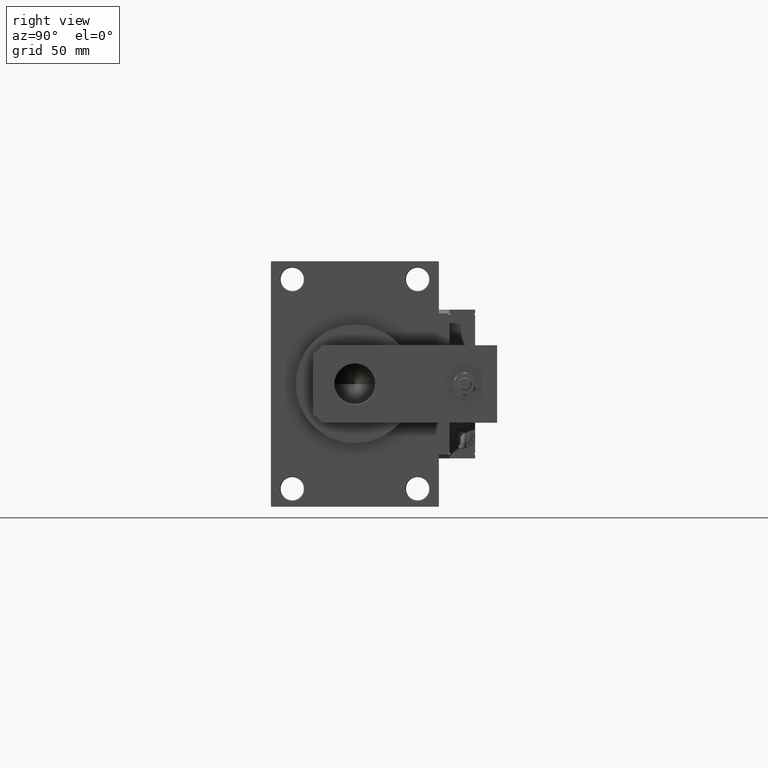
[diagram: clean part render]
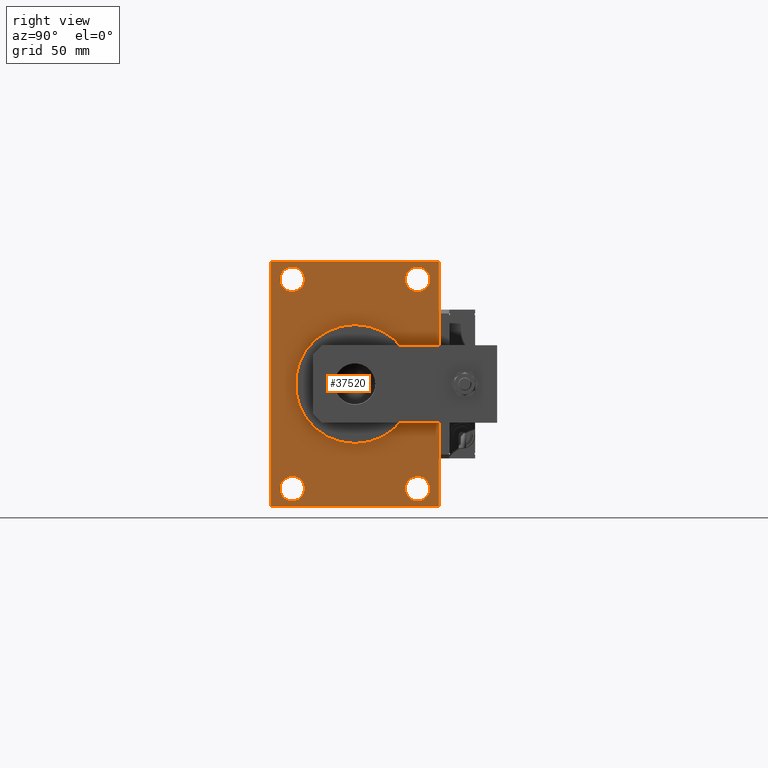
[diagram: same view with one face highlighted and labeled with its STEP entity id]
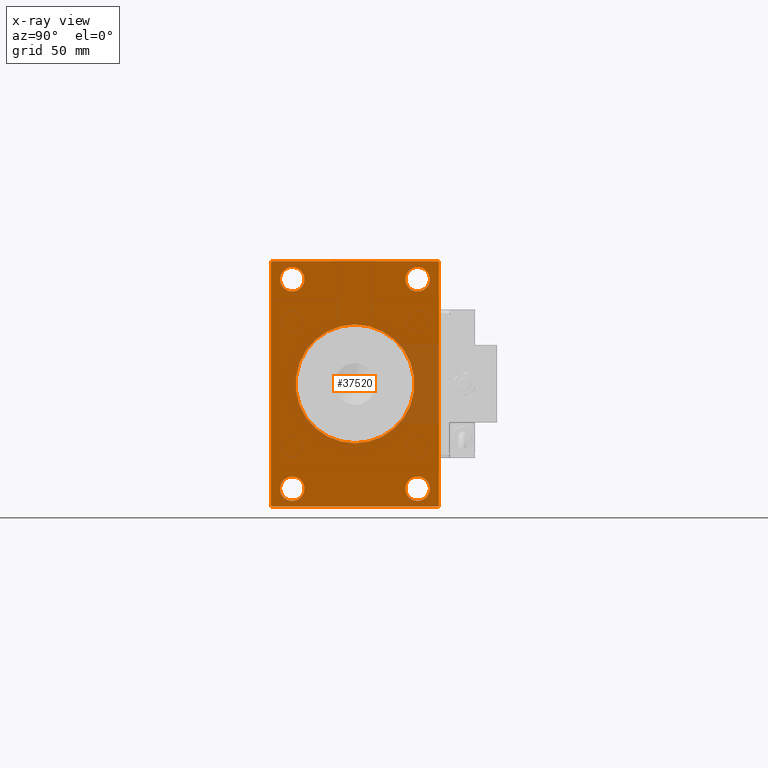
[diagram: x-ray of the same camera — body ghosted, the highlighted face saturated]
A machine part, right view. The second image highlights one B-rep face of the part: STEP entity #37520.
The next image is the same camera in x-ray: the body ghosted, the highlighted face saturated — about 8% of this face is hidden behind the body in this view.
In plain terms, the highlighted planar face has unit normal (-1, 0, 0).
Its self-contained STEP definition (entity closure, byte-faithful):
#40 = EDGE_CURVE ( 'NONE', #17274, #39453, #19210, .T. ) ;
#158 = VERTEX_POINT ( 'NONE', #14507 ) ;
#401 = EDGE_CURVE ( 'NONE', #36453, #158, #29932, .T. ) ;
#502 = CARTESIAN_POINT ( 'NONE',  ( 395.9999999999999432, 64.50000000000000000, 95.00000000000000000 ) ) ;
#1272 = DIRECTION ( 'NONE',  ( -1.000000000000000000, -0.000000000000000000, -0.000000000000000000 ) ) ;
#2403 = DIRECTION ( 'NONE',  ( -0.000000000000000000, -0.7071067811865474617, -0.7071067811865474617 ) ) ;
#3049 = DIRECTION ( 'NONE',  ( -1.000000000000000000, -0.000000000000000000, -0.000000000000000000 ) ) ;
#3743 = VERTEX_POINT ( 'NONE', #39944 ) ;
#4220 = DIRECTION ( 'NONE',  ( -1.000000000000000000, -0.000000000000000000, -0.000000000000000000 ) ) ;
#4673 = VERTEX_POINT ( 'NONE', #49192 ) ;
#4752 = DIRECTION ( 'NONE',  ( -1.000000000000000000, -0.000000000000000000, -0.000000000000000000 ) ) ;
#6580 = CARTESIAN_POINT ( 'NONE',  ( 395.9999999999999432, -48.50000000000000000, -90.50000000000007105 ) ) ;
#6640 = VERTEX_POINT ( 'NONE', #9848 ) ;
#6913 = VERTEX_POINT ( 'NONE', #502 ) ;
#7375 = VECTOR ( 'NONE', #21307, 1000.000000000000114 ) ;
#7833 = CARTESIAN_POINT ( 'NONE',  ( 395.9999999999999432, -48.50000000000000000, 81.00000000000000000 ) ) ;
#8194 = ORIENTED_EDGE ( 'NONE', *, *, #401, .T. ) ;
#8649 = DIRECTION ( 'NONE',  ( -1.000000000000000000, -0.000000000000000000, -0.000000000000000000 ) ) ;
#9210 = DIRECTION ( 'NONE',  ( 0.000000000000000000, 0.000000000000000000, 1.000000000000000000 ) ) ;
#9297 = EDGE_LOOP ( 'NONE', ( #37925, #52369 ) ) ;
#9630 = DIRECTION ( 'NONE',  ( -0.000000000000000000, 0.000000000000000000, 1.000000000000000000 ) ) ;
#9848 = CARTESIAN_POINT ( 'NONE',  ( 395.9999999999999432, 48.50000000000000000, 90.50000000000007105 ) ) ;
#10022 = VECTOR ( 'NONE', #13203, 1000.000000000000000 ) ;
#10342 = CIRCLE ( 'NONE', #13935, 9.500000000000063949 ) ;
#10599 = VERTEX_POINT ( 'NONE', #39284 ) ;
#10616 = CARTESIAN_POINT ( 'NONE',  ( 395.9999999999999432, 65.00000000000000000, -94.50000000000002842 ) ) ;
#10964 = EDGE_CURVE ( 'NONE', #46783, #16783, #12945, .T. ) ;
#11269 = ORIENTED_EDGE ( 'NONE', *, *, #10964, .T. ) ;
#11664 = DIRECTION ( 'NONE',  ( -1.000000000000000000, -0.000000000000000000, -0.000000000000000000 ) ) ;
#12507 = EDGE_CURVE ( 'NONE', #39226, #18840, #16554, .T. ) ;
#12869 = DIRECTION ( 'NONE',  ( 1.000000000000000000, 0.000000000000000000, 0.000000000000000000 ) ) ;
#12945 = CIRCLE ( 'NONE', #45170, 9.500000000000063949 ) ;
#13103 = AXIS2_PLACEMENT_3D ( 'NONE', #35164, #51435, #9630 ) ;
#13203 = DIRECTION ( 'NONE',  ( 0.000000000000000000, -1.000000000000000000, 0.000000000000000000 ) ) ;
#13400 = CARTESIAN_POINT ( 'NONE',  ( 395.9999999999999432, -65.00000000000000000, 94.49999999999998579 ) ) ;
#13440 = CARTESIAN_POINT ( 'NONE',  ( 395.9999999999999432, -64.50000000000000000, 94.99999999999998579 ) ) ;
#13520 = CARTESIAN_POINT ( 'NONE',  ( 395.9999999999999432, 65.00000000000000000, 95.00000000000000000 ) ) ;
#13935 = AXIS2_PLACEMENT_3D ( 'NONE', #55492, #8649, #9210 ) ;
#14233 = CARTESIAN_POINT ( 'NONE',  ( 395.9999999999999432, -64.50000000000000000, -95.00000000000002842 ) ) ;
#14324 = EDGE_CURVE ( 'NONE', #6913, #33381, #38629, .T. ) ;
#14507 = CARTESIAN_POINT ( 'NONE',  ( 395.9999999999999432, -65.00000000000000000, -94.50000000000001421 ) ) ;
#14550 = CARTESIAN_POINT ( 'NONE',  ( 395.9999999999999432, -48.50000000000000000, 71.49999999999994316 ) ) ;
#14700 = VECTOR ( 'NONE', #34151, 1000.000000000000000 ) ;
#15096 = EDGE_LOOP ( 'NONE', ( #53290, #54411 ) ) ;
#15403 = CARTESIAN_POINT ( 'NONE',  ( 395.9999999999999432, -48.50000000000000000, -81.00000000000000000 ) ) ;
#15795 = EDGE_CURVE ( 'NONE', #16783, #46783, #55077, .T. ) ;
#16554 = CIRCLE ( 'NONE', #34470, 9.500000000000063949 ) ;
#16623 = CARTESIAN_POINT ( 'NONE',  ( 395.9999999999999432, 48.50000000000000000, -71.49999999999994316 ) ) ;
#16783 = VERTEX_POINT ( 'NONE', #16623 ) ;
#16820 = CIRCLE ( 'NONE', #49037, 9.500000000000063949 ) ;
#17086 = LINE ( 'NONE', #43183, #7375 ) ;
#17274 = VERTEX_POINT ( 'NONE', #24948 ) ;
#17460 = LINE ( 'NONE', #13520, #39216 ) ;
#17977 = CARTESIAN_POINT ( 'NONE',  ( 395.9999999999999432, 65.00000000000000000, -95.00000000000002842 ) ) ;
#18174 = ORIENTED_EDGE ( 'NONE', *, *, #22521, .F. ) ;
#18649 = CARTESIAN_POINT ( 'NONE',  ( 395.9999999999999432, 48.50000000000000000, -81.00000000000000000 ) ) ;
#18840 = VERTEX_POINT ( 'NONE', #6580 ) ;
#18990 = LINE ( 'NONE', #13400, #42254 ) ;
#19210 = CIRCLE ( 'NONE', #21026, 46.00000000000000000 ) ;
#19226 = AXIS2_PLACEMENT_3D ( 'NONE', #30302, #4752, #38717 ) ;
#19424 = ORIENTED_EDGE ( 'NONE', *, *, #32617, .T. ) ;
#19823 = CIRCLE ( 'NONE', #51178, 9.500000000000063949 ) ;
#20651 = DIRECTION ( 'NONE',  ( 0.000000000000000000, 0.000000000000000000, 1.000000000000000000 ) ) ;
#20709 = ORIENTED_EDGE ( 'NONE', *, *, #51467, .F. ) ;
#20730 = DIRECTION ( 'NONE',  ( 0.000000000000000000, 0.000000000000000000, 1.000000000000000000 ) ) ;
#20829 = VECTOR ( 'NONE', #39807, 1000.000000000000114 ) ;
#20998 = VECTOR ( 'NONE', #54624, 1000.000000000000000 ) ;
#21011 = ORIENTED_EDGE ( 'NONE', *, *, #40237, .T. ) ;
#21026 = AXIS2_PLACEMENT_3D ( 'NONE', #51585, #12869, #26074 ) ;
#21070 = DIRECTION ( 'NONE',  ( 0.000000000000000000, 0.000000000000000000, -1.000000000000000000 ) ) ;
#21206 = CARTESIAN_POINT ( 'NONE',  ( 395.9999999999999432, 48.50000000000000000, 81.00000000000000000 ) ) ;
#21307 = DIRECTION ( 'NONE',  ( 0.000000000000000000, -0.7071067811865474617, 0.7071067811865474617 ) ) ;
#21719 = FACE_BOUND ( 'NONE', #43179, .T. ) ;
#22139 = CARTESIAN_POINT ( 'NONE',  ( 395.9999999999999432, -48.50000000000000000, -71.49999999999994316 ) ) ;
#22375 = CARTESIAN_POINT ( 'NONE',  ( 395.9999999999999432, 65.00000000000000000, 94.50000000000000000 ) ) ;
#22521 = EDGE_CURVE ( 'NONE', #29915, #52922, #17460, .T. ) ;
#22616 = ORIENTED_EDGE ( 'NONE', *, *, #24686, .T. ) ;
#24243 = CIRCLE ( 'NONE', #27796, 46.00000000000000000 ) ;
#24686 = EDGE_CURVE ( 'NONE', #6640, #4673, #16820, .T. ) ;
#24948 = CARTESIAN_POINT ( 'NONE',  ( 395.9999999999999432, 0.000000000000000000, 46.00000000000000000 ) ) ;
#25229 = DIRECTION ( 'NONE',  ( -1.000000000000000000, -0.000000000000000000, -0.000000000000000000 ) ) ;
#25446 = CARTESIAN_POINT ( 'NONE',  ( 395.9999999999999432, -65.00000000000000000, 94.99999999999998579 ) ) ;
#25640 = FACE_BOUND ( 'NONE', #48850, .T. ) ;
#26074 = DIRECTION ( 'NONE',  ( 0.000000000000000000, 0.000000000000000000, -1.000000000000000000 ) ) ;
#27380 = DIRECTION ( 'NONE',  ( 0.000000000000000000, 0.000000000000000000, 1.000000000000000000 ) ) ;
#27796 = AXIS2_PLACEMENT_3D ( 'NONE', #46038, #41826, #21070 ) ;
#28765 = AXIS2_PLACEMENT_3D ( 'NONE', #7833, #25229, #20730 ) ;
#29108 = CARTESIAN_POINT ( 'NONE',  ( 395.9999999999999432, 5.633375276077824704E-15, -46.00000000000000000 ) ) ;
#29915 = VERTEX_POINT ( 'NONE', #22375 ) ;
#29932 = LINE ( 'NONE', #25446, #14700 ) ;
#30302 = CARTESIAN_POINT ( 'NONE',  ( 395.9999999999999432, 48.50000000000000000, -81.00000000000000000 ) ) ;
#31018 = DIRECTION ( 'NONE',  ( -1.000000000000000000, -0.000000000000000000, -0.000000000000000000 ) ) ;
#31364 = DIRECTION ( 'NONE',  ( 0.000000000000000000, 0.7071067811865376918, -0.7071067811865574537 ) ) ;
#32073 = ORIENTED_EDGE ( 'NONE', *, *, #14324, .T. ) ;
#32169 = EDGE_CURVE ( 'NONE', #49883, #32325, #19823, .T. ) ;
#32174 = ORIENTED_EDGE ( 'NONE', *, *, #12507, .T. ) ;
#32198 = LINE ( 'NONE', #14233, #42795 ) ;
#32325 = VERTEX_POINT ( 'NONE', #14550 ) ;
#32332 = CIRCLE ( 'NONE', #28765, 9.500000000000063949 ) ;
#32617 = EDGE_CURVE ( 'NONE', #33381, #36453, #18990, .T. ) ;
#32682 = ORIENTED_EDGE ( 'NONE', *, *, #34110, .T. ) ;
#33381 = VERTEX_POINT ( 'NONE', #13440 ) ;
#33797 = FACE_BOUND ( 'NONE', #9297, .T. ) ;
#34110 = EDGE_CURVE ( 'NONE', #10599, #52922, #44023, .T. ) ;
#34151 = DIRECTION ( 'NONE',  ( 0.000000000000000000, 0.000000000000000000, -1.000000000000000000 ) ) ;
#34156 = CARTESIAN_POINT ( 'NONE',  ( 395.9999999999999432, 65.00000000000000000, 95.00000000000000000 ) ) ;
#34470 = AXIS2_PLACEMENT_3D ( 'NONE', #15403, #3049, #50200 ) ;
#35164 = CARTESIAN_POINT ( 'NONE',  ( 395.9999999999999432, 0.000000000000000000, 0.000000000000000000 ) ) ;
#35381 = EDGE_CURVE ( 'NONE', #18840, #39226, #10342, .T. ) ;
#35425 = FACE_BOUND ( 'NONE', #15096, .T. ) ;
#35647 = AXIS2_PLACEMENT_3D ( 'NONE', #40003, #1272, #27380 ) ;
#36054 = CARTESIAN_POINT ( 'NONE',  ( 395.9999999999999432, 65.00000000000000000, -94.50000000000002842 ) ) ;
#36453 = VERTEX_POINT ( 'NONE', #53690 ) ;
#37520 = ADVANCED_FACE ( 'NONE', ( #33797, #25640, #21719, #47227, #35425, #52530 ), #39093, .F. ) ;
#37775 = CARTESIAN_POINT ( 'NONE',  ( 395.9999999999999432, 48.50000000000000000, -90.50000000000007105 ) ) ;
#37898 = DIRECTION ( 'NONE',  ( 0.000000000000000000, 0.000000000000000000, 1.000000000000000000 ) ) ;
#37925 = ORIENTED_EDGE ( 'NONE', *, *, #49742, .T. ) ;
#38629 = LINE ( 'NONE', #34156, #20998 ) ;
#38717 = DIRECTION ( 'NONE',  ( 0.000000000000000000, 0.000000000000000000, 1.000000000000000000 ) ) ;
#39093 = PLANE ( 'NONE',  #13103 ) ;
#39126 = EDGE_CURVE ( 'NONE', #158, #3743, #32198, .T. ) ;
#39216 = VECTOR ( 'NONE', #52499, 1000.000000000000000 ) ;
#39226 = VERTEX_POINT ( 'NONE', #22139 ) ;
#39284 = CARTESIAN_POINT ( 'NONE',  ( 395.9999999999999432, 64.50000000000000000, -95.00000000000002842 ) ) ;
#39453 = VERTEX_POINT ( 'NONE', #29108 ) ;
#39703 = DIRECTION ( 'NONE',  ( 0.000000000000000000, 0.000000000000000000, 1.000000000000000000 ) ) ;
#39781 = EDGE_LOOP ( 'NONE', ( #21011, #22616 ) ) ;
#39807 = DIRECTION ( 'NONE',  ( -0.000000000000000000, 0.7071067811865474617, 0.7071067811865474617 ) ) ;
#39944 = CARTESIAN_POINT ( 'NONE',  ( 395.9999999999999432, -64.50000000000000000, -95.00000000000002842 ) ) ;
#40003 = CARTESIAN_POINT ( 'NONE',  ( 395.9999999999999432, 48.50000000000000000, 81.00000000000000000 ) ) ;
#40237 = EDGE_CURVE ( 'NONE', #4673, #6640, #49050, .T. ) ;
#41826 = DIRECTION ( 'NONE',  ( 1.000000000000000000, 0.000000000000000000, 0.000000000000000000 ) ) ;
#42254 = VECTOR ( 'NONE', #2403, 1000.000000000000114 ) ;
#42795 = VECTOR ( 'NONE', #31364, 999.9999999999998863 ) ;
#43179 = EDGE_LOOP ( 'NONE', ( #11269, #48666 ) ) ;
#43183 = CARTESIAN_POINT ( 'NONE',  ( 395.9999999999999432, 64.50000000000000000, 95.00000000000000000 ) ) ;
#43979 = CARTESIAN_POINT ( 'NONE',  ( 395.9999999999999432, -48.50000000000000000, 90.50000000000007105 ) ) ;
#44023 = LINE ( 'NONE', #10616, #20829 ) ;
#44937 = ORIENTED_EDGE ( 'NONE', *, *, #35381, .T. ) ;
#45170 = AXIS2_PLACEMENT_3D ( 'NONE', #18649, #31018, #39703 ) ;
#46038 = CARTESIAN_POINT ( 'NONE',  ( 395.9999999999999432, 0.000000000000000000, 0.000000000000000000 ) ) ;
#46181 = ORIENTED_EDGE ( 'NONE', *, *, #52590, .T. ) ;
#46783 = VERTEX_POINT ( 'NONE', #37775 ) ;
#46939 = EDGE_LOOP ( 'NONE', ( #8194, #52023, #20709, #32682, #18174, #46181, #32073, #19424 ) ) ;
#47227 = FACE_BOUND ( 'NONE', #39781, .T. ) ;
#48291 = EDGE_CURVE ( 'NONE', #39453, #17274, #24243, .T. ) ;
#48666 = ORIENTED_EDGE ( 'NONE', *, *, #15795, .T. ) ;
#48850 = EDGE_LOOP ( 'NONE', ( #44937, #32174 ) ) ;
#49037 = AXIS2_PLACEMENT_3D ( 'NONE', #21206, #11664, #20651 ) ;
#49050 = CIRCLE ( 'NONE', #35647, 9.500000000000063949 ) ;
#49192 = CARTESIAN_POINT ( 'NONE',  ( 395.9999999999999432, 48.50000000000000000, 71.49999999999994316 ) ) ;
#49742 = EDGE_CURVE ( 'NONE', #32325, #49883, #32332, .T. ) ;
#49883 = VERTEX_POINT ( 'NONE', #43979 ) ;
#50200 = DIRECTION ( 'NONE',  ( 0.000000000000000000, 0.000000000000000000, 1.000000000000000000 ) ) ;
#51178 = AXIS2_PLACEMENT_3D ( 'NONE', #51631, #4220, #37898 ) ;
#51368 = LINE ( 'NONE', #17977, #10022 ) ;
#51435 = DIRECTION ( 'NONE',  ( -1.000000000000000000, 0.000000000000000000, -0.000000000000000000 ) ) ;
#51467 = EDGE_CURVE ( 'NONE', #10599, #3743, #51368, .T. ) ;
#51585 = CARTESIAN_POINT ( 'NONE',  ( 395.9999999999999432, 0.000000000000000000, 0.000000000000000000 ) ) ;
#51631 = CARTESIAN_POINT ( 'NONE',  ( 395.9999999999999432, -48.50000000000000000, 81.00000000000000000 ) ) ;
#52023 = ORIENTED_EDGE ( 'NONE', *, *, #39126, .T. ) ;
#52369 = ORIENTED_EDGE ( 'NONE', *, *, #32169, .T. ) ;
#52499 = DIRECTION ( 'NONE',  ( 0.000000000000000000, 0.000000000000000000, -1.000000000000000000 ) ) ;
#52530 = FACE_OUTER_BOUND ( 'NONE', #46939, .T. ) ;
#52590 = EDGE_CURVE ( 'NONE', #29915, #6913, #17086, .T. ) ;
#52922 = VERTEX_POINT ( 'NONE', #36054 ) ;
#53290 = ORIENTED_EDGE ( 'NONE', *, *, #40, .F. ) ;
#53690 = CARTESIAN_POINT ( 'NONE',  ( 395.9999999999999432, -65.00000000000000000, 94.49999999999998579 ) ) ;
#54411 = ORIENTED_EDGE ( 'NONE', *, *, #48291, .F. ) ;
#54624 = DIRECTION ( 'NONE',  ( 0.000000000000000000, -1.000000000000000000, -1.067522139062650425E-16 ) ) ;
#55077 = CIRCLE ( 'NONE', #19226, 9.500000000000063949 ) ;
#55492 = CARTESIAN_POINT ( 'NONE',  ( 395.9999999999999432, -48.50000000000000000, -81.00000000000000000 ) ) ;